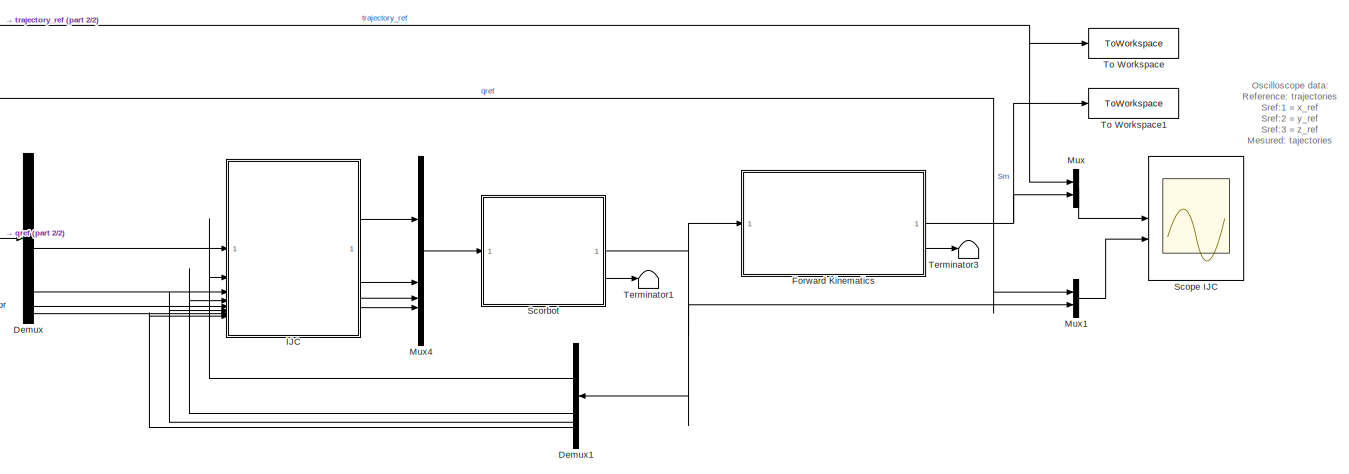
[diagram: root canvas - part 1/2, right side, full height]
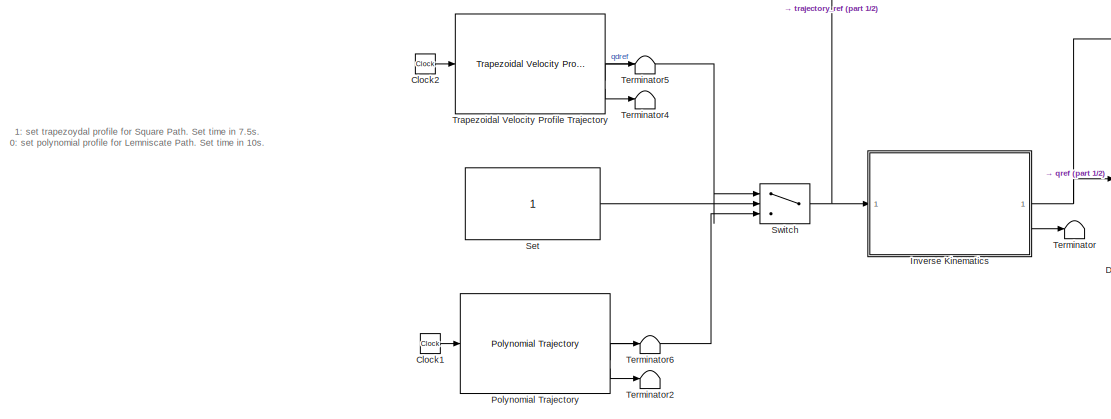
[diagram: root canvas - part 2/2, left side, full height]
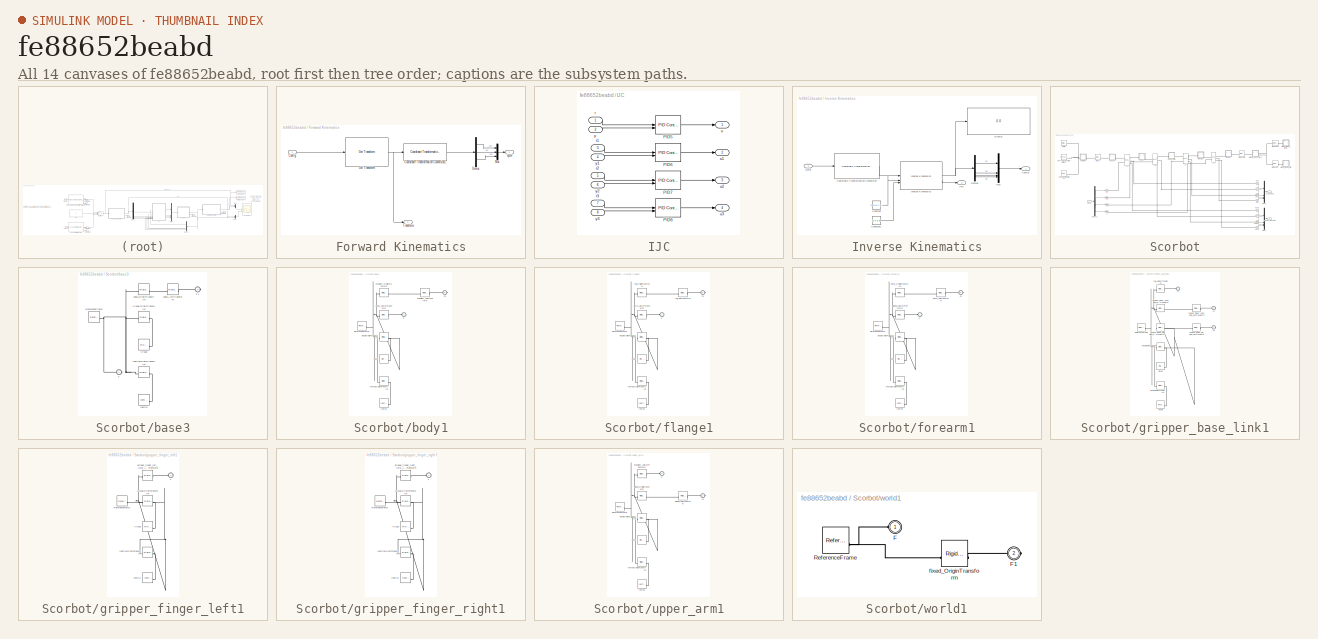
[diagram: thumbnail index - all 14 canvases of the model, root first then tree order]
MODEL slx_fe88652beabd
KIND model
CONFIG AbsTol = auto
CONFIG EnableMultiTasking = off
CONFIG FixedStep = auto
CONFIG MaxStep = auto
CONFIG MinStep = auto
CONFIG RelTol = 1e-3
CONFIG SampleTimeConstraint = Unconstrained
CONFIG SolverName = ode23t
CONFIG StartTime = 0.0
CONFIG StopTime = 7.5
BLOCK [Clock] Clock1
BLOCK [Clock] Clock2
BLOCK [Demux] Demux
BLOCK [Demux] Demux1
BLOCK [SubSystem] Forward Kinematics
BLOCK [Inport] Forward Kinematics/Config
BLOCK [Reference] Forward Kinematics/Coordinate Transformation Conversion1  REF=robotcorelib/Coordinate Transformation Conversion
  LibrarySourceBlock = robotutilslib/Coordinate Transformation Conversion
  SourceBlock = robotcorelib/Coordinate Transformation Conversion
  SourceType = robotics.slcore.internal.block.CoordinateTransformationConversion
BLOCK [Demux] Forward Kinematics/Demux
  Outputs = 3
BLOCK [Reference] Forward Kinematics/Get Transform  REF=robotmaniplib/Get Transform
  SourceBlock = robotmaniplib/Get Transform
  SourceType = Get Transform
BLOCK [Mux] Forward Kinematics/Mux
  DisplayOption = bar
  Inputs = 3
BLOCK [Outport] Forward Kinematics/Transform
  Port = 2
BLOCK [Outport] Forward Kinematics/xyzm
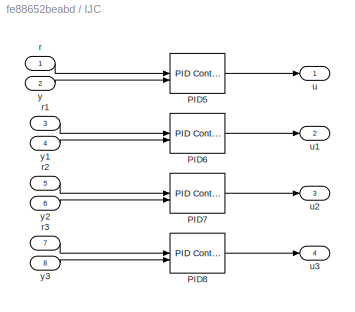
BLOCK [SubSystem] IJC
BLOCK [Reference] IJC/PID5  REF=slpidlib/PID Controller (2DOF)
  LibrarySourceBlock = simulink/Continuous/PID Controller (2DOF)
  SourceBlock = slpidlib/PID Controller (2DOF)
  SourceType = PID 2dof
BLOCK [Reference] IJC/PID6  REF=slpidlib/PID Controller (2DOF)
  LibrarySourceBlock = simulink/Continuous/PID Controller (2DOF)
  SourceBlock = slpidlib/PID Controller (2DOF)
  SourceType = PID 2dof
BLOCK [Reference] IJC/PID7  REF=slpidlib/PID Controller (2DOF)
  LibrarySourceBlock = simulink/Continuous/PID Controller (2DOF)
  SourceBlock = slpidlib/PID Controller (2DOF)
  SourceType = PID 2dof
BLOCK [Reference] IJC/PID8  REF=slpidlib/PID Controller (2DOF)
  LibrarySourceBlock = simulink/Continuous/PID Controller (2DOF)
  SourceBlock = slpidlib/PID Controller (2DOF)
  SourceType = PID 2dof
BLOCK [Inport] IJC/r
BLOCK [Inport] IJC/r1
  Port = 3
BLOCK [Inport] IJC/r2
  Port = 5
BLOCK [Inport] IJC/r3
  Port = 7
BLOCK [Outport] IJC/u
BLOCK [Outport] IJC/u1
  Port = 2
BLOCK [Outport] IJC/u2
  Port = 3
BLOCK [Outport] IJC/u3
  Port = 4
BLOCK [Inport] IJC/y
  Port = 2
BLOCK [Inport] IJC/y1
  Port = 4
BLOCK [Inport] IJC/y2
  Port = 6
BLOCK [Inport] IJC/y3
  Port = 8
BLOCK [SubSystem] Inverse Kinematics
BLOCK [Outport] Inverse Kinematics/Config
BLOCK [Constant] Inverse Kinematics/Constant
  Value = [0 0 0  1 1 1]
BLOCK [Constant] Inverse Kinematics/Constant1
  Value = [0 0 0 0]
BLOCK [Reference] Inverse Kinematics/Coordinate Transformation Conversion  REF=robotcorelib/Coordinate Transformation Conversion
  LibrarySourceBlock = robotutilslib/Coordinate Transformation Conversion
  SourceBlock = robotcorelib/Coordinate Transformation Conversion
  SourceType = robotics.slcore.internal.block.CoordinateTransformationConversion
BLOCK [Demux] Inverse Kinematics/Demux
BLOCK [Display] Inverse Kinematics/Display
  Decimation = 1
BLOCK [Outport] Inverse Kinematics/Info
  Port = 2
BLOCK [Reference] Inverse Kinematics/Inverse Kinematics  REF=robotmaniplib/Inverse Kinematics
  SourceBlock = robotmaniplib/Inverse Kinematics
  SourceType = Inverse Kinematics
BLOCK [Mux] Inverse Kinematics/Mux
  DisplayOption = bar
BLOCK [Inport] Inverse Kinematics/xyzref
BLOCK [Mux] Mux
  DisplayOption = bar
  Inputs = 2
BLOCK [Mux] Mux1
  DisplayOption = bar
  Inputs = 2
BLOCK [Mux] Mux4
  DisplayOption = bar
BLOCK [Reference] Polynomial Trajectory  REF=robotcorelib/Polynomial Trajectory
  LibrarySourceBlock = robotutilslib/Polynomial Trajectory
  SourceBlock = robotcorelib/Polynomial Trajectory
  SourceType = robotics.slcore.internal.block.PolyTrajSys
BLOCK [Scope] Scope IJC
  Floating = off
  NumInputPorts = 2
  ScopeSpecificationString = Simulink.scopes.TimeScopeBlockCfg('CurrentConfiguration', extmgr.ConfigurationSet(extmgr.Configuration('Core','General UI',true,'DisplayFullSourceName',true),extmgr.Configuration('Core','Source UI',true),extmgr.Configuration('Sources','WiredSimulink',true),extmgr.Configuration('Visuals','Time Domain',true,'SerializedDisplays',{struct('MinYLimReal','-0.12944','MaxYLimReal','1.16494','YLabelReal',''...<+2703ch>
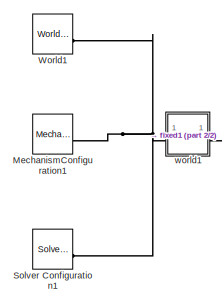
[diagram: Scorbot - part 1/2, top left region]
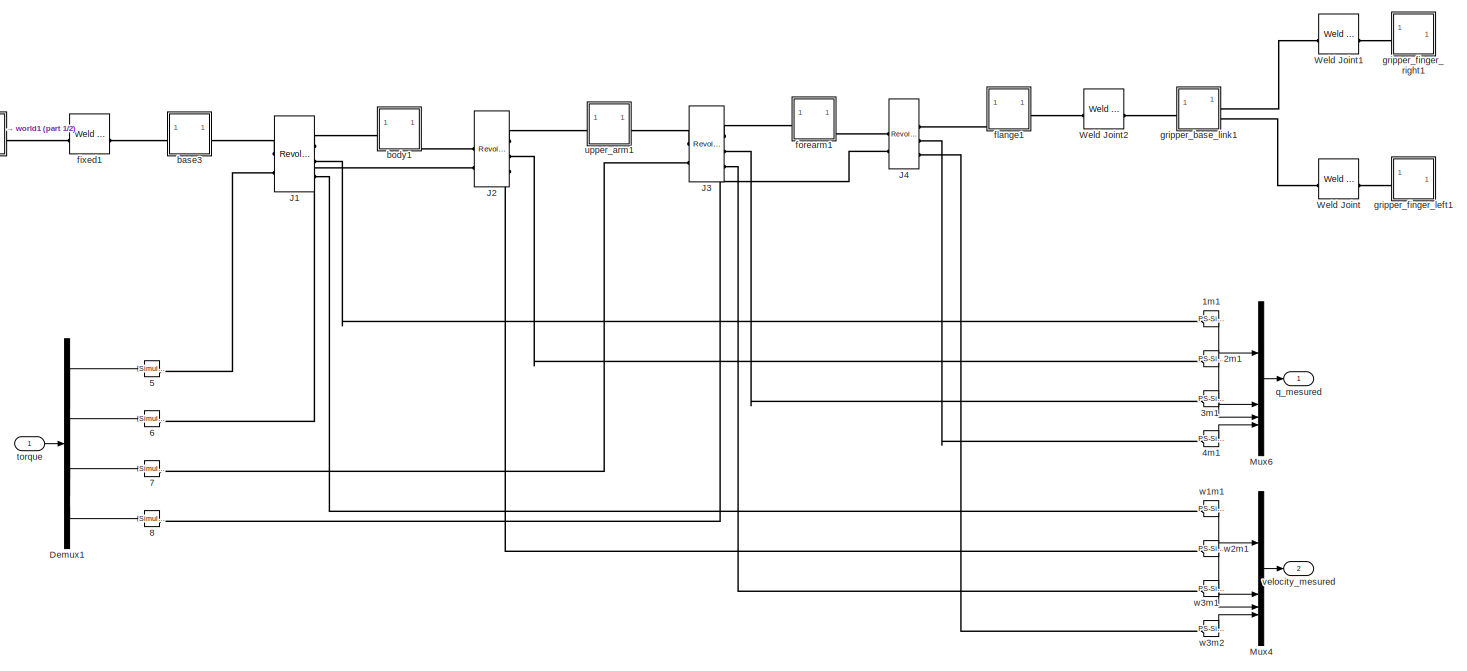
[diagram: Scorbot - part 2/2, most of the canvas]
BLOCK [SubSystem] Scorbot
BLOCK [Reference] Scorbot/1m1  REF=nesl_utility/PS-Simulink
Converter
  SourceBlock = nesl_utility/PS-Simulink\nConverter
  SourceType = PS-Simulink\nConverter
BLOCK [Reference] Scorbot/2m1  REF=nesl_utility/PS-Simulink
Converter
  SourceBlock = nesl_utility/PS-Simulink\nConverter
  SourceType = PS-Simulink\nConverter
BLOCK [Reference] Scorbot/3m1  REF=nesl_utility/PS-Simulink
Converter
  SourceBlock = nesl_utility/PS-Simulink\nConverter
  SourceType = PS-Simulink\nConverter
BLOCK [Reference] Scorbot/4m1  REF=nesl_utility/PS-Simulink
Converter
  SourceBlock = nesl_utility/PS-Simulink\nConverter
  SourceType = PS-Simulink\nConverter
BLOCK [Reference] Scorbot/5  REF=nesl_utility/Simulink-PS
Converter
  SourceBlock = nesl_utility/Simulink-PS\nConverter
  SourceType = Simulink-PS\nConverter
BLOCK [Reference] Scorbot/6  REF=nesl_utility/Simulink-PS
Converter
  SourceBlock = nesl_utility/Simulink-PS\nConverter
  SourceType = Simulink-PS\nConverter
BLOCK [Reference] Scorbot/7  REF=nesl_utility/Simulink-PS
Converter
  SourceBlock = nesl_utility/Simulink-PS\nConverter
  SourceType = Simulink-PS\nConverter
BLOCK [Reference] Scorbot/8  REF=nesl_utility/Simulink-PS
Converter
  SourceBlock = nesl_utility/Simulink-PS\nConverter
  SourceType = Simulink-PS\nConverter
BLOCK [Demux] Scorbot/Demux1
BLOCK [Reference] Scorbot/J1  REF=sm_lib/Joints/Revolute Joint
  SourceBlock = sm_lib/Joints/Revolute Joint
  SourceType = Revolute Joint
BLOCK [Reference] Scorbot/J2  REF=sm_lib/Joints/Revolute Joint
  SourceBlock = sm_lib/Joints/Revolute Joint
  SourceType = Revolute Joint
BLOCK [Reference] Scorbot/J3  REF=sm_lib/Joints/Revolute Joint
  SourceBlock = sm_lib/Joints/Revolute Joint
  SourceType = Revolute Joint
BLOCK [Reference] Scorbot/J4  REF=sm_lib/Joints/Revolute Joint
  SourceBlock = sm_lib/Joints/Revolute Joint
  SourceType = Revolute Joint
BLOCK [Reference] Scorbot/MechanismConfiguration1  REF=sm_lib/Utilities/Mechanism
Configuration
  SourceBlock = sm_lib/Utilities/Mechanism\nConfiguration
  SourceType = Mechanism\nConfiguration
BLOCK [Mux] Scorbot/Mux4
  DisplayOption = bar
BLOCK [Mux] Scorbot/Mux6
  DisplayOption = bar
BLOCK [Reference] Scorbot/Solver Configuration1  REF=nesl_utility/Solver
Configuration
  SourceBlock = nesl_utility/Solver\nConfiguration
  SourceType = Solver\nConfiguration
BLOCK [Reference] Scorbot/Weld Joint  REF=sm_lib/Joints/Weld Joint
  SourceBlock = sm_lib/Joints/Weld Joint
  SourceType = Weld Joint
BLOCK [Reference] Scorbot/Weld Joint1  REF=sm_lib/Joints/Weld Joint
  SourceBlock = sm_lib/Joints/Weld Joint
  SourceType = Weld Joint
BLOCK [Reference] Scorbot/Weld Joint2  REF=sm_lib/Joints/Weld Joint
  SourceBlock = sm_lib/Joints/Weld Joint
  SourceType = Weld Joint
BLOCK [Reference] Scorbot/World1  REF=sm_lib/Frames and
Transforms/World Frame
  SourceBlock = sm_lib/Frames and\nTransforms/World Frame
  SourceType = World Frame
BLOCK [SubSystem] Scorbot/base3
BLOCK [PMIOPort] Scorbot/base3/F
  Side = Left
BLOCK [PMIOPort] Scorbot/base3/F1
  Port = 2
  Side = Right
BLOCK [Reference] Scorbot/base3/Inertia  REF=sm_lib/Body Elements/Inertia
  SourceBlock = sm_lib/Body Elements/Inertia
  SourceType = Inertia
BLOCK [Reference] Scorbot/base3/InertiaOriginTransform  REF=sm_lib/Frames and
Transforms/Rigid
Transform
  SourceBlock = sm_lib/Frames and\nTransforms/Rigid\nTransform
  SourceType = Rigid\nTransform
BLOCK [Reference] Scorbot/base3/ReferenceFrame  REF=sm_lib/Frames and
Transforms/Reference
Frame
  SourceBlock = sm_lib/Frames and\nTransforms/Reference\nFrame
  SourceType = Reference\nFrame
BLOCK [Reference] Scorbot/base3/Visual  REF=sm_lib/Body Elements/File Solid
  SourceBlock = sm_lib/Body Elements/File Solid
  SourceType = File Solid
BLOCK [Reference] Scorbot/base3/VisualOriginTransform  REF=sm_lib/Frames and
Transforms/Rigid
Transform
  SourceBlock = sm_lib/Frames and\nTransforms/Rigid\nTransform
  SourceType = Rigid\nTransform
BLOCK [Reference] Scorbot/base3/base_AxisTransform  REF=sm_lib/Frames and
Transforms/Rigid
Transform
  SourceBlock = sm_lib/Frames and\nTransforms/Rigid\nTransform
  SourceType = Rigid\nTransform
BLOCK [Reference] Scorbot/base3/base_OriginTransform  REF=sm_lib/Frames and
Transforms/Rigid
Transform
  SourceBlock = sm_lib/Frames and\nTransforms/Rigid\nTransform
  SourceType = Rigid\nTransform
BLOCK [SubSystem] Scorbot/body1
BLOCK [PMIOPort] Scorbot/body1/F
  Side = Left
BLOCK [PMIOPort] Scorbot/body1/F1
  Port = 2
  Side = Right
BLOCK [Reference] Scorbot/body1/Inertia  REF=sm_lib/Body Elements/Inertia
  SourceBlock = sm_lib/Body Elements/Inertia
  SourceType = Inertia
BLOCK [Reference] Scorbot/body1/InertiaOriginTransform  REF=sm_lib/Frames and
Transforms/Rigid
Transform
  SourceBlock = sm_lib/Frames and\nTransforms/Rigid\nTransform
  SourceType = Rigid\nTransform
BLOCK [Reference] Scorbot/body1/ReferenceFrame  REF=sm_lib/Frames and
Transforms/Reference
Frame
  SourceBlock = sm_lib/Frames and\nTransforms/Reference\nFrame
  SourceType = Reference\nFrame
BLOCK [Reference] Scorbot/body1/Visual  REF=sm_lib/Body Elements/File Solid
  SourceBlock = sm_lib/Body Elements/File Solid
  SourceType = File Solid
BLOCK [Reference] Scorbot/body1/VisualOriginTransform  REF=sm_lib/Frames and
Transforms/Rigid
Transform
  SourceBlock = sm_lib/Frames and\nTransforms/Rigid\nTransform
  SourceType = Rigid\nTransform
BLOCK [Reference] Scorbot/body1/base_AxisInvTransform  REF=sm_lib/Frames and
Transforms/Rigid
Transform
  SourceBlock = sm_lib/Frames and\nTransforms/Rigid\nTransform
  SourceType = Rigid\nTransform
BLOCK [Reference] Scorbot/body1/shoulder_AxisTransform  REF=sm_lib/Frames and
Transforms/Rigid
Transform
  SourceBlock = sm_lib/Frames and\nTransforms/Rigid\nTransform
  SourceType = Rigid\nTransform
BLOCK [Reference] Scorbot/body1/shoulder_OriginTransform  REF=sm_lib/Frames and
Transforms/Rigid
Transform
  SourceBlock = sm_lib/Frames and\nTransforms/Rigid\nTransform
  SourceType = Rigid\nTransform
BLOCK [Reference] Scorbot/fixed1  REF=sm_lib/Joints/Weld Joint
  SourceBlock = sm_lib/Joints/Weld Joint
  SourceType = Weld Joint
BLOCK [SubSystem] Scorbot/flange1
BLOCK [PMIOPort] Scorbot/flange1/F
  Side = Left
BLOCK [PMIOPort] Scorbot/flange1/F1
  Port = 2
  Side = Right
BLOCK [Reference] Scorbot/flange1/Inertia  REF=sm_lib/Body Elements/Inertia
  SourceBlock = sm_lib/Body Elements/Inertia
  SourceType = Inertia
BLOCK [Reference] Scorbot/flange1/InertiaOriginTransform  REF=sm_lib/Frames and
Transforms/Rigid
Transform
  SourceBlock = sm_lib/Frames and\nTransforms/Rigid\nTransform
  SourceType = Rigid\nTransform
BLOCK [Reference] Scorbot/flange1/ReferenceFrame  REF=sm_lib/Frames and
Transforms/Reference
Frame
  SourceBlock = sm_lib/Frames and\nTransforms/Reference\nFrame
  SourceType = Reference\nFrame
BLOCK [Reference] Scorbot/flange1/Visual  REF=sm_lib/Body Elements/File Solid
  SourceBlock = sm_lib/Body Elements/File Solid
  SourceType = File Solid
BLOCK [Reference] Scorbot/flange1/VisualOriginTransform  REF=sm_lib/Frames and
Transforms/Rigid
Transform
  SourceBlock = sm_lib/Frames and\nTransforms/Rigid\nTransform
  SourceType = Rigid\nTransform
BLOCK [Reference] Scorbot/flange1/pitch_AxisInvTransform  REF=sm_lib/Frames and
Transforms/Rigid
Transform
  SourceBlock = sm_lib/Frames and\nTransforms/Rigid\nTransform
  SourceType = Rigid\nTransform
BLOCK [Reference] Scorbot/flange1/roll_AxisTransform  REF=sm_lib/Frames and
Transforms/Rigid
Transform
  SourceBlock = sm_lib/Frames and\nTransforms/Rigid\nTransform
  SourceType = Rigid\nTransform
BLOCK [Reference] Scorbot/flange1/roll_OriginTransform  REF=sm_lib/Frames and
Transforms/Rigid
Transform
  SourceBlock = sm_lib/Frames and\nTransforms/Rigid\nTransform
  SourceType = Rigid\nTransform
BLOCK [SubSystem] Scorbot/forearm1
BLOCK [PMIOPort] Scorbot/forearm1/F
  Side = Left
BLOCK [PMIOPort] Scorbot/forearm1/F1
  Port = 2
  Side = Right
BLOCK [Reference] Scorbot/forearm1/Inertia  REF=sm_lib/Body Elements/Inertia
  SourceBlock = sm_lib/Body Elements/Inertia
  SourceType = Inertia
BLOCK [Reference] Scorbot/forearm1/InertiaOriginTransform  REF=sm_lib/Frames and
Transforms/Rigid
Transform
  SourceBlock = sm_lib/Frames and\nTransforms/Rigid\nTransform
  SourceType = Rigid\nTransform
BLOCK [Reference] Scorbot/forearm1/ReferenceFrame  REF=sm_lib/Frames and
Transforms/Reference
Frame
  SourceBlock = sm_lib/Frames and\nTransforms/Reference\nFrame
  SourceType = Reference\nFrame
BLOCK [Reference] Scorbot/forearm1/Visual  REF=sm_lib/Body Elements/File Solid
  SourceBlock = sm_lib/Body Elements/File Solid
  SourceType = File Solid
BLOCK [Reference] Scorbot/forearm1/VisualOriginTransform  REF=sm_lib/Frames and
Transforms/Rigid
Transform
  SourceBlock = sm_lib/Frames and\nTransforms/Rigid\nTransform
  SourceType = Rigid\nTransform
BLOCK [Reference] Scorbot/forearm1/elbow_AxisInvTransform  REF=sm_lib/Frames and
Transforms/Rigid
Transform
  SourceBlock = sm_lib/Frames and\nTransforms/Rigid\nTransform
  SourceType = Rigid\nTransform
BLOCK [Reference] Scorbot/forearm1/pitch_AxisTransform  REF=sm_lib/Frames and
Transforms/Rigid
Transform
  SourceBlock = sm_lib/Frames and\nTransforms/Rigid\nTransform
  SourceType = Rigid\nTransform
BLOCK [Reference] Scorbot/forearm1/pitch_OriginTransform  REF=sm_lib/Frames and
Transforms/Rigid
Transform
  SourceBlock = sm_lib/Frames and\nTransforms/Rigid\nTransform
  SourceType = Rigid\nTransform
BLOCK [SubSystem] Scorbot/gripper_base_link1
BLOCK [PMIOPort] Scorbot/gripper_base_link1/F
  Side = Left
BLOCK [PMIOPort] Scorbot/gripper_base_link1/F1
  Port = 3
  Side = Right
BLOCK [PMIOPort] Scorbot/gripper_base_link1/F2
  Port = 2
  Side = Right
BLOCK [Reference] Scorbot/gripper_base_link1/Inertia  REF=sm_lib/Body Elements/Inertia
  SourceBlock = sm_lib/Body Elements/Inertia
  SourceType = Inertia
BLOCK [Reference] Scorbot/gripper_base_link1/InertiaOriginTransform  REF=sm_lib/Frames and
Transforms/Rigid
Transform
  SourceBlock = sm_lib/Frames and\nTransforms/Rigid\nTransform
  SourceType = Rigid\nTransform
BLOCK [Reference] Scorbot/gripper_base_link1/ReferenceFrame  REF=sm_lib/Frames and
Transforms/Reference
Frame
  SourceBlock = sm_lib/Frames and\nTransforms/Reference\nFrame
  SourceType = Reference\nFrame
BLOCK [Reference] Scorbot/gripper_base_link1/Visual  REF=sm_lib/Body Elements/File Solid
  SourceBlock = sm_lib/Body Elements/File Solid
  SourceType = File Solid
BLOCK [Reference] Scorbot/gripper_base_link1/VisualOriginTransform  REF=sm_lib/Frames and
Transforms/Rigid
Transform
  SourceBlock = sm_lib/Frames and\nTransforms/Rigid\nTransform
  SourceType = Rigid\nTransform
BLOCK [Reference] Scorbot/gripper_base_link1/gripper_finger_left_joint_AxisTransform  REF=sm_lib/Frames and
Transforms/Rigid
Transform
  SourceBlock = sm_lib/Frames and\nTransforms/Rigid\nTransform
  SourceType = Rigid\nTransform
BLOCK [Reference] Scorbot/gripper_base_link1/gripper_finger_left_joint_OriginTransform  REF=sm_lib/Frames and
Transforms/Rigid
Transform
  SourceBlock = sm_lib/Frames and\nTransforms/Rigid\nTransform
  SourceType = Rigid\nTransform
BLOCK [Reference] Scorbot/gripper_base_link1/gripper_finger_right_joint_AxisTransform  REF=sm_lib/Frames and
Transforms/Rigid
Transform
  SourceBlock = sm_lib/Frames and\nTransforms/Rigid\nTransform
  SourceType = Rigid\nTransform
BLOCK [Reference] Scorbot/gripper_base_link1/gripper_finger_right_joint_OriginTransform  REF=sm_lib/Frames and
Transforms/Rigid
Transform
  SourceBlock = sm_lib/Frames and\nTransforms/Rigid\nTransform
  SourceType = Rigid\nTransform
BLOCK [Reference] Scorbot/gripper_base_link1/roll_AxisInvTransform  REF=sm_lib/Frames and
Transforms/Rigid
Transform
  SourceBlock = sm_lib/Frames and\nTransforms/Rigid\nTransform
  SourceType = Rigid\nTransform
BLOCK [SubSystem] Scorbot/gripper_finger_left1
BLOCK [PMIOPort] Scorbot/gripper_finger_left1/F
  Side = Left
BLOCK [Reference] Scorbot/gripper_finger_left1/Inertia  REF=sm_lib/Body Elements/Inertia
  SourceBlock = sm_lib/Body Elements/Inertia
  SourceType = Inertia
BLOCK [Reference] Scorbot/gripper_finger_left1/InertiaOriginTransform  REF=sm_lib/Frames and
Transforms/Rigid
Transform
  SourceBlock = sm_lib/Frames and\nTransforms/Rigid\nTransform
  SourceType = Rigid\nTransform
BLOCK [Reference] Scorbot/gripper_finger_left1/ReferenceFrame  REF=sm_lib/Frames and
Transforms/Reference
Frame
  SourceBlock = sm_lib/Frames and\nTransforms/Reference\nFrame
  SourceType = Reference\nFrame
BLOCK [Reference] Scorbot/gripper_finger_left1/Visual  REF=sm_lib/Body Elements/File Solid
  SourceBlock = sm_lib/Body Elements/File Solid
  SourceType = File Solid
BLOCK [Reference] Scorbot/gripper_finger_left1/VisualOriginTransform  REF=sm_lib/Frames and
Transforms/Rigid
Transform
  SourceBlock = sm_lib/Frames and\nTransforms/Rigid\nTransform
  SourceType = Rigid\nTransform
BLOCK [Reference] Scorbot/gripper_finger_left1/gripper_finger_left_joint_AxisInvTransform  REF=sm_lib/Frames and
Transforms/Rigid
Transform
  SourceBlock = sm_lib/Frames and\nTransforms/Rigid\nTransform
  SourceType = Rigid\nTransform
BLOCK [SubSystem] Scorbot/gripper_finger_right1
BLOCK [PMIOPort] Scorbot/gripper_finger_right1/F
  Side = Left
BLOCK [Reference] Scorbot/gripper_finger_right1/Inertia  REF=sm_lib/Body Elements/Inertia
  SourceBlock = sm_lib/Body Elements/Inertia
  SourceType = Inertia
BLOCK [Reference] Scorbot/gripper_finger_right1/InertiaOriginTransform  REF=sm_lib/Frames and
Transforms/Rigid
Transform
  SourceBlock = sm_lib/Frames and\nTransforms/Rigid\nTransform
  SourceType = Rigid\nTransform
BLOCK [Reference] Scorbot/gripper_finger_right1/ReferenceFrame  REF=sm_lib/Frames and
Transforms/Reference
Frame
  SourceBlock = sm_lib/Frames and\nTransforms/Reference\nFrame
  SourceType = Reference\nFrame
BLOCK [Reference] Scorbot/gripper_finger_right1/Visual  REF=sm_lib/Body Elements/File Solid
  SourceBlock = sm_lib/Body Elements/File Solid
  SourceType = File Solid
BLOCK [Reference] Scorbot/gripper_finger_right1/VisualOriginTransform  REF=sm_lib/Frames and
Transforms/Rigid
Transform
  SourceBlock = sm_lib/Frames and\nTransforms/Rigid\nTransform
  SourceType = Rigid\nTransform
BLOCK [Reference] Scorbot/gripper_finger_right1/gripper_finger_right_joint_AxisInvTransform  REF=sm_lib/Frames and
Transforms/Rigid
Transform
  SourceBlock = sm_lib/Frames and\nTransforms/Rigid\nTransform
  SourceType = Rigid\nTransform
BLOCK [Outport] Scorbot/q_mesured
BLOCK [Inport] Scorbot/torque
BLOCK [SubSystem] Scorbot/upper_arm1
BLOCK [PMIOPort] Scorbot/upper_arm1/F
  Side = Left
BLOCK [PMIOPort] Scorbot/upper_arm1/F1
  Port = 2
  Side = Right
BLOCK [Reference] Scorbot/upper_arm1/Inertia  REF=sm_lib/Body Elements/Inertia
  SourceBlock = sm_lib/Body Elements/Inertia
  SourceType = Inertia
BLOCK [Reference] Scorbot/upper_arm1/InertiaOriginTransform  REF=sm_lib/Frames and
Transforms/Rigid
Transform
  SourceBlock = sm_lib/Frames and\nTransforms/Rigid\nTransform
  SourceType = Rigid\nTransform
BLOCK [Reference] Scorbot/upper_arm1/ReferenceFrame  REF=sm_lib/Frames and
Transforms/Reference
Frame
  SourceBlock = sm_lib/Frames and\nTransforms/Reference\nFrame
  SourceType = Reference\nFrame
BLOCK [Reference] Scorbot/upper_arm1/Visual  REF=sm_lib/Body Elements/File Solid
  SourceBlock = sm_lib/Body Elements/File Solid
  SourceType = File Solid
BLOCK [Reference] Scorbot/upper_arm1/VisualOriginTransform  REF=sm_lib/Frames and
Transforms/Rigid
Transform
  SourceBlock = sm_lib/Frames and\nTransforms/Rigid\nTransform
  SourceType = Rigid\nTransform
BLOCK [Reference] Scorbot/upper_arm1/elbow_AxisTransform  REF=sm_lib/Frames and
Transforms/Rigid
Transform
  SourceBlock = sm_lib/Frames and\nTransforms/Rigid\nTransform
  SourceType = Rigid\nTransform
BLOCK [Reference] Scorbot/upper_arm1/elbow_OriginTransform  REF=sm_lib/Frames and
Transforms/Rigid
Transform
  SourceBlock = sm_lib/Frames and\nTransforms/Rigid\nTransform
  SourceType = Rigid\nTransform
BLOCK [Reference] Scorbot/upper_arm1/shoulder_AxisInvTransform  REF=sm_lib/Frames and
Transforms/Rigid
Transform
  SourceBlock = sm_lib/Frames and\nTransforms/Rigid\nTransform
  SourceType = Rigid\nTransform
BLOCK [Outport] Scorbot/velocity_mesured
  Port = 2
BLOCK [Reference] Scorbot/w1m1  REF=nesl_utility/PS-Simulink
Converter
  SourceBlock = nesl_utility/PS-Simulink\nConverter
  SourceType = PS-Simulink\nConverter
BLOCK [Reference] Scorbot/w2m1  REF=nesl_utility/PS-Simulink
Converter
  SourceBlock = nesl_utility/PS-Simulink\nConverter
  SourceType = PS-Simulink\nConverter
BLOCK [Reference] Scorbot/w3m1  REF=nesl_utility/PS-Simulink
Converter
  SourceBlock = nesl_utility/PS-Simulink\nConverter
  SourceType = PS-Simulink\nConverter
BLOCK [Reference] Scorbot/w3m2  REF=nesl_utility/PS-Simulink
Converter
  SourceBlock = nesl_utility/PS-Simulink\nConverter
  SourceType = PS-Simulink\nConverter
BLOCK [SubSystem] Scorbot/world1
BLOCK [PMIOPort] Scorbot/world1/F
  Side = Left
BLOCK [PMIOPort] Scorbot/world1/F1
  Port = 2
  Side = Right
BLOCK [Reference] Scorbot/world1/ReferenceFrame  REF=sm_lib/Frames and
Transforms/Reference
Frame
  SourceBlock = sm_lib/Frames and\nTransforms/Reference\nFrame
  SourceType = Reference\nFrame
BLOCK [Reference] Scorbot/world1/fixed_OriginTransform  REF=sm_lib/Frames and
Transforms/Rigid
Transform
  SourceBlock = sm_lib/Frames and\nTransforms/Rigid\nTransform
  SourceType = Rigid\nTransform
BLOCK [Constant] Set
BLOCK [Switch] Switch
  Criteria = u2 > Threshold
  InputSameDT = off
  SaturateOnIntegerOverflow = off
BLOCK [Terminator] Terminator
BLOCK [Terminator] Terminator1
BLOCK [Terminator] Terminator2
BLOCK [Terminator] Terminator3
BLOCK [Terminator] Terminator4
BLOCK [Terminator] Terminator5
BLOCK [Terminator] Terminator6
BLOCK [ToWorkspace] To Workspace
  FixptAsFi = on
  MaxDataPoints = inf
  SampleTime = -1
  SaveFormat = Timeseries
  VariableName = ref_2DOF
BLOCK [ToWorkspace] To Workspace1
  FixptAsFi = on
  MaxDataPoints = inf
  SampleTime = -1
  SaveFormat = Timeseries
  VariableName = m_2DOF
BLOCK [Reference] Trapezoidal Velocity Profile Trajectory  REF=robotcorelib/Trapezoidal Velocity Profile Trajectory
  LibrarySourceBlock = robotutilslib/Trapezoidal Velocity Profile Trajectory
  SourceBlock = robotcorelib/Trapezoidal Velocity Profile Trajectory
  SourceType = robotics.slcore.internal.block.TrapVelTrajSys
ANNOTATION (root): Oscilloscope data: Reference: trajectories Sref:1 = x_ref Sref:2 = y_ref Sref:3 = z_ref Mesured: tajectories Sm:1 = x_m Sm:2 = y_m Sm:3 = z_m Reference: angles of joints qref:1 = q1 qref:2 = q2 qref:3 = q3 qref:4 = q4 Mesured: angles of joints qm:1 = q1_m qm:2 = q2_m qm:3 = q3_m qm:4 = q4_m
ANNOTATION (root): 1: set trapezoydal profile for Square Path. Set time in 7.5s. 0: set polynomial profile for Lemniscate Path. Set time in 10s.
LINE Clock1:1 -> Polynomial Trajectory:1
LINE Clock2:1 -> Trapezoidal Velocity Profile Trajectory:1
LINE Demux1:1 -> IJC:2
LINE Demux1:2 -> IJC:4
LINE Demux1:3 -> IJC:6
LINE Demux1:4 -> IJC:8
LINE Demux:1 -> IJC:1
LINE Demux:2 -> IJC:3
LINE Demux:3 -> IJC:5
LINE Demux:4 -> IJC:7
LINE Forward Kinematics/Config:1 -> Forward Kinematics/Get Transform:1
LINE Forward Kinematics/Coordinate Transformation Conversion1:1 -> Forward Kinematics/Demux:1
LINE Forward Kinematics/Demux:1 -> Forward Kinematics/Mux:1
LINE Forward Kinematics/Demux:2 -> Forward Kinematics/Mux:2
LINE Forward Kinematics/Demux:3 -> Forward Kinematics/Mux:3
NET Forward Kinematics/Get Transform:1 -> Forward Kinematics/Coordinate Transformation Conversion1:1, Forward Kinematics/Transform:1
LINE Forward Kinematics/Mux:1 -> Forward Kinematics/xyzm:1
NET Forward Kinematics:1 -> Mux:2, To Workspace1:1
LINE Forward Kinematics:2 -> Terminator3:1
LINE IJC/PID5:1 -> IJC/u:1
LINE IJC/PID6:1 -> IJC/u1:1
LINE IJC/PID7:1 -> IJC/u2:1
LINE IJC/PID8:1 -> IJC/u3:1
LINE IJC/r1:1 -> IJC/PID6:1
LINE IJC/r2:1 -> IJC/PID7:1
LINE IJC/r3:1 -> IJC/PID8:1
LINE IJC/r:1 -> IJC/PID5:1
LINE IJC/y1:1 -> IJC/PID6:2
LINE IJC/y2:1 -> IJC/PID7:2
LINE IJC/y3:1 -> IJC/PID8:2
LINE IJC/y:1 -> IJC/PID5:2
LINE IJC:1 -> Mux4:1
LINE IJC:2 -> Mux4:2
LINE IJC:3 -> Mux4:3
LINE IJC:4 -> Mux4:4
LINE Inverse Kinematics/Constant1:1 -> Inverse Kinematics/Inverse Kinematics:3
LINE Inverse Kinematics/Constant:1 -> Inverse Kinematics/Inverse Kinematics:2
LINE Inverse Kinematics/Coordinate Transformation Conversion:1 -> Inverse Kinematics/Inverse Kinematics:1
LINE Inverse Kinematics/Demux:1 -> Inverse Kinematics/Mux:1
LINE Inverse Kinematics/Demux:2 -> Inverse Kinematics/Mux:2
LINE Inverse Kinematics/Demux:3 -> Inverse Kinematics/Mux:3
LINE Inverse Kinematics/Demux:4 -> Inverse Kinematics/Mux:4
NET Inverse Kinematics/Inverse Kinematics:1 -> Inverse Kinematics/Demux:1, Inverse Kinematics/Display:1
LINE Inverse Kinematics/Inverse Kinematics:2 -> Inverse Kinematics/Info:1
LINE Inverse Kinematics/Mux:1 -> Inverse Kinematics/Config:1
LINE Inverse Kinematics/xyzref:1 -> Inverse Kinematics/Coordinate Transformation Conversion:1
NET Inverse Kinematics:1 -> Demux:1, Mux1:1
LINE Inverse Kinematics:2 -> Terminator:1
LINE Mux1:1 -> Scope IJC:2
LINE Mux4:1 -> Scorbot:1
LINE Mux:1 -> Scope IJC:1
LINE Polynomial Trajectory:1 -> Switch:3
LINE Polynomial Trajectory:2 -> Terminator6:1
LINE Polynomial Trajectory:3 -> Terminator2:1
LINE Scorbot/1m1:1 -> Scorbot/Mux6:1
LINE Scorbot/2m1:1 -> Scorbot/Mux6:2
LINE Scorbot/3m1:1 -> Scorbot/Mux6:3
LINE Scorbot/4m1:1 -> Scorbot/Mux6:4
LINE Scorbot/Demux1:1 -> Scorbot/5:1
LINE Scorbot/Demux1:2 -> Scorbot/6:1
LINE Scorbot/Demux1:3 -> Scorbot/7:1
LINE Scorbot/Demux1:4 -> Scorbot/8:1
LINE Scorbot/Mux4:1 -> Scorbot/velocity_mesured:1
LINE Scorbot/Mux6:1 -> Scorbot/q_mesured:1
LINE Scorbot/torque:1 -> Scorbot/Demux1:1
LINE Scorbot/w1m1:1 -> Scorbot/Mux4:1
LINE Scorbot/w2m1:1 -> Scorbot/Mux4:2
LINE Scorbot/w3m1:1 -> Scorbot/Mux4:3
LINE Scorbot/w3m2:1 -> Scorbot/Mux4:4
NET Scorbot:1 -> Demux1:1, Forward Kinematics:1, Mux1:2
LINE Scorbot:2 -> Terminator1:1
LINE Set:1 -> Switch:2
NET Switch:1 -> Inverse Kinematics:1, Mux:1, To Workspace:1
LINE Trapezoidal Velocity Profile Trajectory:1 -> Switch:1
LINE Trapezoidal Velocity Profile Trajectory:2 -> Terminator5:1
LINE Trapezoidal Velocity Profile Trajectory:3 -> Terminator4:1
PLINE Scorbot/1m1:LConn1 -- Scorbot/J1:RConn2
PLINE Scorbot/2m1:LConn1 -- Scorbot/J2:RConn2
PLINE Scorbot/3m1:LConn1 -- Scorbot/J3:RConn2
PLINE Scorbot/4m1:LConn1 -- Scorbot/J4:RConn2
PLINE Scorbot/5:RConn1 -- Scorbot/J1:LConn2
PLINE Scorbot/6:RConn1 -- Scorbot/J2:LConn2
PLINE Scorbot/7:RConn1 -- Scorbot/J3:LConn2
PLINE Scorbot/8:RConn1 -- Scorbot/J4:LConn2
PLINE Scorbot/J1:LConn1 -- Scorbot/base3:RConn1
PLINE Scorbot/J1:RConn1 -- Scorbot/body1:LConn1
PLINE Scorbot/J1:RConn3 -- Scorbot/w1m1:LConn1
PLINE Scorbot/J2:LConn1 -- Scorbot/body1:RConn1
PLINE Scorbot/J2:RConn1 -- Scorbot/upper_arm1:LConn1
PLINE Scorbot/J2:RConn3 -- Scorbot/w2m1:LConn1
PLINE Scorbot/J3:LConn1 -- Scorbot/upper_arm1:RConn1
PLINE Scorbot/J3:RConn1 -- Scorbot/forearm1:LConn1
PLINE Scorbot/J3:RConn3 -- Scorbot/w3m1:LConn1
PLINE Scorbot/J4:LConn1 -- Scorbot/forearm1:RConn1
PLINE Scorbot/J4:RConn1 -- Scorbot/flange1:LConn1
PLINE Scorbot/J4:RConn3 -- Scorbot/w3m2:LConn1
PNET net1: Scorbot/MechanismConfiguration1:RConn1 -- Scorbot/Solver Configuration1:RConn1 -- Scorbot/World1:RConn1 -- Scorbot/world1:LConn1
PLINE Scorbot/Weld Joint1:LConn1 -- Scorbot/gripper_base_link1:RConn1
PLINE Scorbot/Weld Joint1:RConn1 -- Scorbot/gripper_finger_right1:LConn1
PLINE Scorbot/Weld Joint2:LConn1 -- Scorbot/flange1:RConn1
PLINE Scorbot/Weld Joint2:RConn1 -- Scorbot/gripper_base_link1:LConn1
PLINE Scorbot/Weld Joint:LConn1 -- Scorbot/gripper_base_link1:RConn2
PLINE Scorbot/Weld Joint:RConn1 -- Scorbot/gripper_finger_left1:LConn1
PLINE Scorbot/base3/F1:RConn1 -- Scorbot/base3/base_AxisTransform:RConn1
PNET net2: Scorbot/base3/F:RConn1 -- Scorbot/base3/InertiaOriginTransform:LConn1 -- Scorbot/base3/ReferenceFrame:RConn1 -- Scorbot/base3/VisualOriginTransform:LConn1 -- Scorbot/base3/base_OriginTransform:LConn1
PLINE Scorbot/base3/Inertia:RConn1 -- Scorbot/base3/InertiaOriginTransform:RConn1
PLINE Scorbot/base3/Visual:RConn1 -- Scorbot/base3/VisualOriginTransform:RConn1
PLINE Scorbot/base3/base_AxisTransform:LConn1 -- Scorbot/base3/base_OriginTransform:RConn1
PLINE Scorbot/base3:LConn1 -- Scorbot/fixed1:RConn1
PLINE Scorbot/body1/F1:RConn1 -- Scorbot/body1/shoulder_AxisTransform:RConn1
PLINE Scorbot/body1/F:RConn1 -- Scorbot/body1/base_AxisInvTransform:RConn1
PLINE Scorbot/body1/Inertia:RConn1 -- Scorbot/body1/InertiaOriginTransform:RConn1
PNET net3: Scorbot/body1/InertiaOriginTransform:LConn1 -- Scorbot/body1/ReferenceFrame:RConn1 -- Scorbot/body1/VisualOriginTransform:LConn1 -- Scorbot/body1/base_AxisInvTransform:LConn1 -- Scorbot/body1/shoulder_OriginTransform:LConn1
PLINE Scorbot/body1/Visual:RConn1 -- Scorbot/body1/VisualOriginTransform:RConn1
PLINE Scorbot/body1/shoulder_AxisTransform:LConn1 -- Scorbot/body1/shoulder_OriginTransform:RConn1
PLINE Scorbot/fixed1:LConn1 -- Scorbot/world1:RConn1
PLINE Scorbot/flange1/F1:RConn1 -- Scorbot/flange1/roll_AxisTransform:RConn1
PLINE Scorbot/flange1/F:RConn1 -- Scorbot/flange1/pitch_AxisInvTransform:RConn1
PLINE Scorbot/flange1/Inertia:RConn1 -- Scorbot/flange1/InertiaOriginTransform:RConn1
PNET net4: Scorbot/flange1/InertiaOriginTransform:LConn1 -- Scorbot/flange1/ReferenceFrame:RConn1 -- Scorbot/flange1/VisualOriginTransform:LConn1 -- Scorbot/flange1/pitch_AxisInvTransform:LConn1 -- Scorbot/flange1/roll_OriginTransform:LConn1
PLINE Scorbot/flange1/Visual:RConn1 -- Scorbot/flange1/VisualOriginTransform:RConn1
PLINE Scorbot/flange1/roll_AxisTransform:LConn1 -- Scorbot/flange1/roll_OriginTransform:RConn1
PLINE Scorbot/forearm1/F1:RConn1 -- Scorbot/forearm1/pitch_AxisTransform:RConn1
PLINE Scorbot/forearm1/F:RConn1 -- Scorbot/forearm1/elbow_AxisInvTransform:RConn1
PLINE Scorbot/forearm1/Inertia:RConn1 -- Scorbot/forearm1/InertiaOriginTransform:RConn1
PNET net5: Scorbot/forearm1/InertiaOriginTransform:LConn1 -- Scorbot/forearm1/ReferenceFrame:RConn1 -- Scorbot/forearm1/VisualOriginTransform:LConn1 -- Scorbot/forearm1/elbow_AxisInvTransform:LConn1 -- Scorbot/forearm1/pitch_OriginTransform:LConn1
PLINE Scorbot/forearm1/Visual:RConn1 -- Scorbot/forearm1/VisualOriginTransform:RConn1
PLINE Scorbot/forearm1/pitch_AxisTransform:LConn1 -- Scorbot/forearm1/pitch_OriginTransform:RConn1
PLINE Scorbot/gripper_base_link1/F1:RConn1 -- Scorbot/gripper_base_link1/gripper_finger_left_joint_AxisTransform:RConn1
PLINE Scorbot/gripper_base_link1/F2:RConn1 -- Scorbot/gripper_base_link1/gripper_finger_right_joint_AxisTransform:RConn1
PLINE Scorbot/gripper_base_link1/F:RConn1 -- Scorbot/gripper_base_link1/roll_AxisInvTransform:RConn1
PLINE Scorbot/gripper_base_link1/Inertia:RConn1 -- Scorbot/gripper_base_link1/InertiaOriginTransform:RConn1
PNET net6: Scorbot/gripper_base_link1/InertiaOriginTransform:LConn1 -- Scorbot/gripper_base_link1/ReferenceFrame:RConn1 -- Scorbot/gripper_base_link1/VisualOriginTransform:LConn1 -- Scorbot/gripper_base_link1/gripper_finger_left_joint_OriginTransform:LConn1 -- Scorbot/gripper_base_link1/gripper_finger_right_joint_OriginTransform:LConn1 -- Scorbot/gripper_base_link1/roll_AxisInvTransform:LConn1
PLINE Scorbot/gripper_base_link1/Visual:RConn1 -- Scorbot/gripper_base_link1/VisualOriginTransform:RConn1
PLINE Scorbot/gripper_base_link1/gripper_finger_left_joint_AxisTransform:LConn1 -- Scorbot/gripper_base_link1/gripper_finger_left_joint_OriginTransform:RConn1
PLINE Scorbot/gripper_base_link1/gripper_finger_right_joint_AxisTransform:LConn1 -- Scorbot/gripper_base_link1/gripper_finger_right_joint_OriginTransform:RConn1
PLINE Scorbot/gripper_finger_left1/F:RConn1 -- Scorbot/gripper_finger_left1/gripper_finger_left_joint_AxisInvTransform:RConn1
PLINE Scorbot/gripper_finger_left1/Inertia:RConn1 -- Scorbot/gripper_finger_left1/InertiaOriginTransform:RConn1
PNET net7: Scorbot/gripper_finger_left1/InertiaOriginTransform:LConn1 -- Scorbot/gripper_finger_left1/ReferenceFrame:RConn1 -- Scorbot/gripper_finger_left1/VisualOriginTransform:LConn1 -- Scorbot/gripper_finger_left1/gripper_finger_left_joint_AxisInvTransform:LConn1
PLINE Scorbot/gripper_finger_left1/Visual:RConn1 -- Scorbot/gripper_finger_left1/VisualOriginTransform:RConn1
PLINE Scorbot/gripper_finger_right1/F:RConn1 -- Scorbot/gripper_finger_right1/gripper_finger_right_joint_AxisInvTransform:RConn1
PLINE Scorbot/gripper_finger_right1/Inertia:RConn1 -- Scorbot/gripper_finger_right1/InertiaOriginTransform:RConn1
PNET net8: Scorbot/gripper_finger_right1/InertiaOriginTransform:LConn1 -- Scorbot/gripper_finger_right1/ReferenceFrame:RConn1 -- Scorbot/gripper_finger_right1/VisualOriginTransform:LConn1 -- Scorbot/gripper_finger_right1/gripper_finger_right_joint_AxisInvTransform:LConn1
PLINE Scorbot/gripper_finger_right1/Visual:RConn1 -- Scorbot/gripper_finger_right1/VisualOriginTransform:RConn1
PLINE Scorbot/upper_arm1/F1:RConn1 -- Scorbot/upper_arm1/elbow_AxisTransform:RConn1
PLINE Scorbot/upper_arm1/F:RConn1 -- Scorbot/upper_arm1/shoulder_AxisInvTransform:RConn1
PLINE Scorbot/upper_arm1/Inertia:RConn1 -- Scorbot/upper_arm1/InertiaOriginTransform:RConn1
PNET net9: Scorbot/upper_arm1/InertiaOriginTransform:LConn1 -- Scorbot/upper_arm1/ReferenceFrame:RConn1 -- Scorbot/upper_arm1/VisualOriginTransform:LConn1 -- Scorbot/upper_arm1/elbow_OriginTransform:LConn1 -- Scorbot/upper_arm1/shoulder_AxisInvTransform:LConn1
PLINE Scorbot/upper_arm1/Visual:RConn1 -- Scorbot/upper_arm1/VisualOriginTransform:RConn1
PLINE Scorbot/upper_arm1/elbow_AxisTransform:LConn1 -- Scorbot/upper_arm1/elbow_OriginTransform:RConn1
PLINE Scorbot/world1/F1:RConn1 -- Scorbot/world1/fixed_OriginTransform:RConn1
PNET net10: Scorbot/world1/F:RConn1 -- Scorbot/world1/ReferenceFrame:RConn1 -- Scorbot/world1/fixed_OriginTransform:LConn1
note: NET lines group one-source signal fan-out (src -> all destinations, sorted); 1:1 wires keep LINE; PNET lines group multi-terminal physical nets as a canonical sorted terminal list (undirected conserving connections); 2-terminal nets keep the pairwise PLINE form
